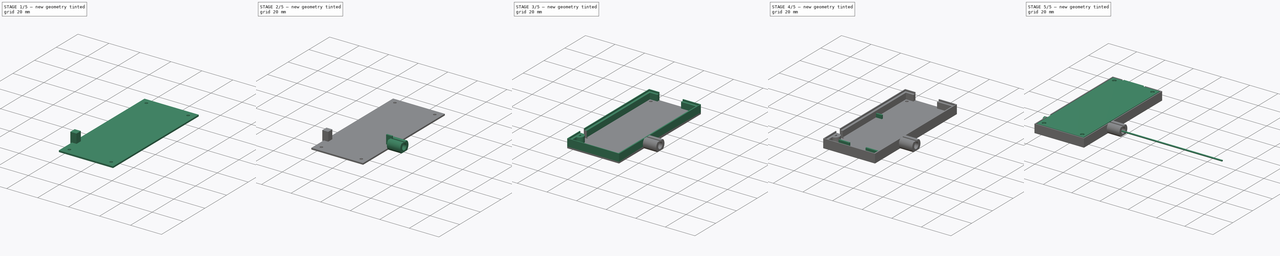
[diagram: build sequence overview — one tinted view per stage of 5, left to right]
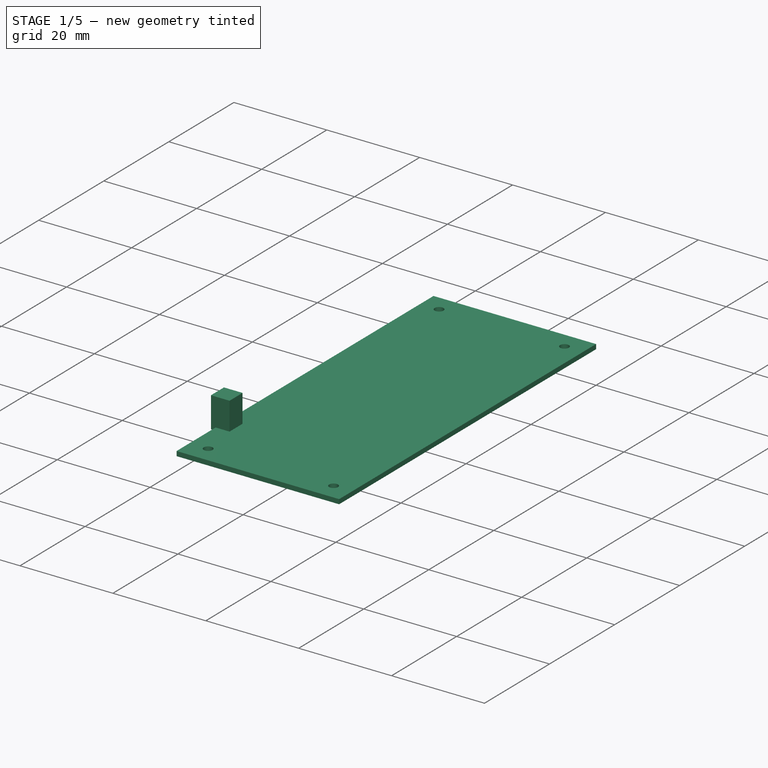
[diagram: stage 1 of 5 — iso view after this stage's code; geometry added in this stage tinted green]
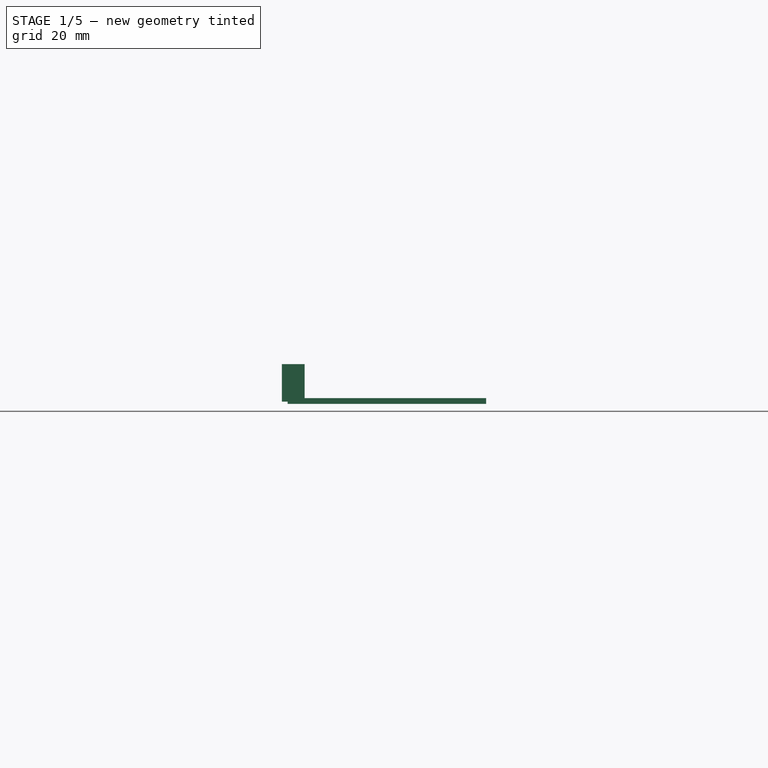
[diagram: stage 1 of 5 — front view after this stage's code; geometry added in this stage tinted green]
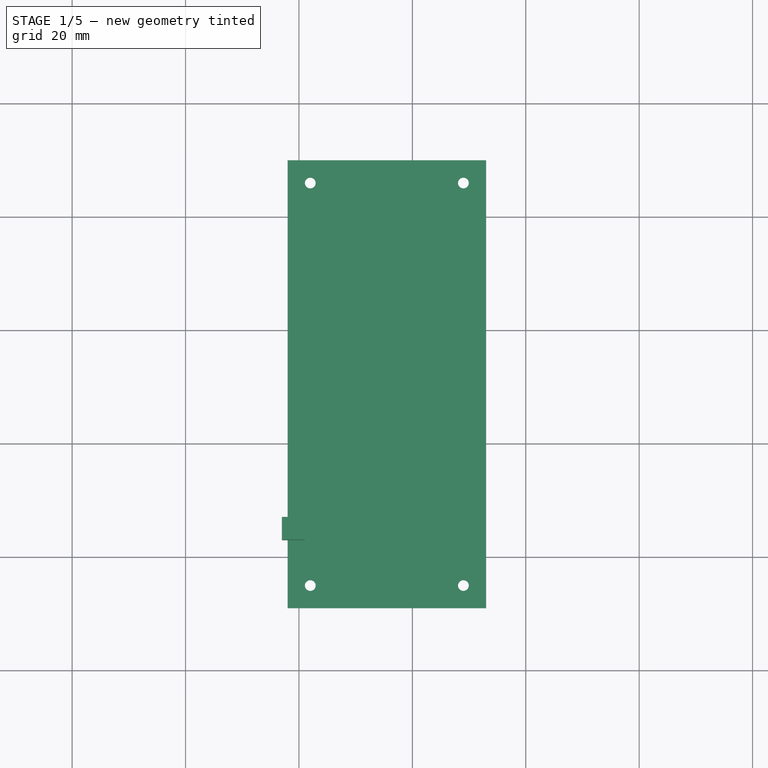
[diagram: stage 1 of 5 — top view after this stage's code; geometry added in this stage tinted green]
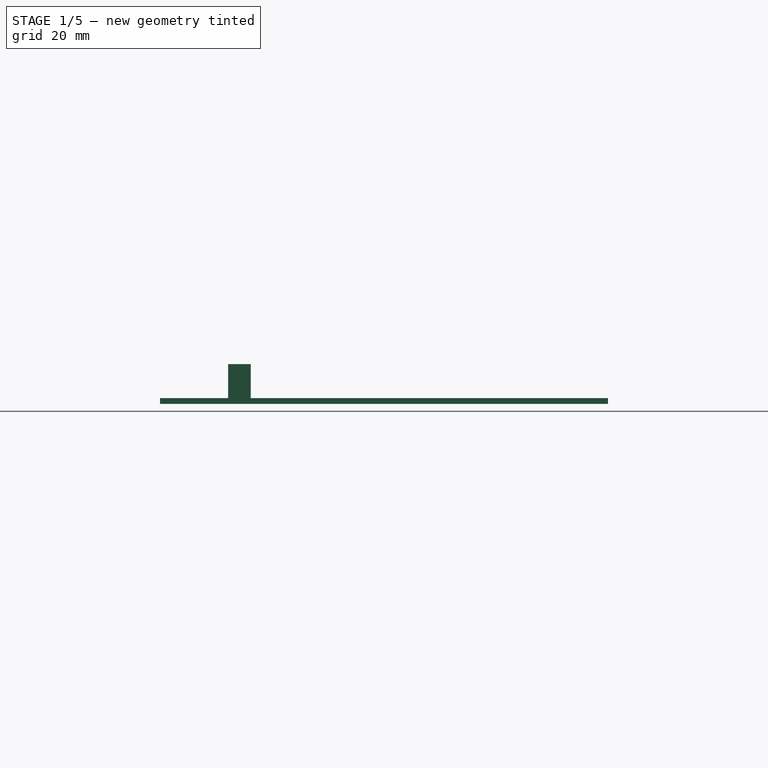
[diagram: stage 1 of 5 — right view after this stage's code; geometry added in this stage tinted green]
FCSTD DOCUMENT  (FreeCAD 0.19R24291 (Git))
Label: servo_board
License: All rights reserved
LicenseURL: http://en.wikipedia.org/wiki/All_rights_reserved
objects: Sketcher::SketchObject×10, Part::Extrusion×8, PartDesign::FeatureBase×6, PartDesign::Body×6, Part::Compound×3, Part::Cut×3, Part::Cylinder×2, Part::Box×1, Spreadsheet::Sheet×1, Part::Sweep×1
note: 40 computed .brp shape members not serialized (recipe doc carries the construction recipe); baked Part::Feature solids carry a one-line shape summary decoded from their .brp

FEATURE [Sketcher::SketchObject] Sketch006
  FullyConstrained = true
  Placement = pos=(0,0,-1) rot=(0,0,1;0rad)
  expr: Constraints[12] = Spreadsheet.m2_r1
  sketch-geometry (8):
    g0: LineSegment StartX=-2 StartY=70 StartZ=0 EndX=33 EndY=70 EndZ=0
    g1: LineSegment StartX=33 StartY=70 StartZ=0 EndX=33 EndY=-9 EndZ=0
    g2: LineSegment StartX=33 StartY=-9 StartZ=0 EndX=-2 EndY=-9 EndZ=0
    g3: LineSegment StartX=-2 StartY=-9 StartZ=0 EndX=-2 EndY=70 EndZ=0
    g4: Circle CenterX=2 CenterY=-5 CenterZ=0 NormalX=0 NormalY=0 NormalZ=1 AngleXU=0 Radius=0.95
    g5: Circle CenterX=29 CenterY=-5 CenterZ=0 NormalX=0 NormalY=0 NormalZ=1 AngleXU=0 Radius=0.95
    g6: Circle CenterX=2 CenterY=66 CenterZ=0 NormalX=0 NormalY=0 NormalZ=1 AngleXU=0 Radius=0.95
    g7: Circle CenterX=29 CenterY=66 CenterZ=0 NormalX=0 NormalY=0 NormalZ=1 AngleXU=0 Radius=0.95
  constraints (24):
    c: Coincident(g0,g1)
    c: Coincident(g1,g2)
    c: Coincident(g2,g3)
    c: Coincident(g3,g0)
    c: Horizontal(g0)
    c: Horizontal(g2)
    c: Vertical(g1)
    c: Vertical(g3)
    c: DistanceX(g0) = -2
    c: DistanceY(g0) = 70
    c: DistanceX(g1) = 33
    c: DistanceY(g1) = -9
    c: Radius(g4) = 0.95
    c: DistanceX(g4) = 2
    c: DistanceY(g4) = -5
    c: Equal(g4,g5) = 1.2
    c: Equal(g4,g6) = 1.2
    c: Equal(g4,g7) = 1.2
    c: Horizontal(g6,g7)
    c: Vertical(g7,g5)
    c: Horizontal(g5,g4)
    c: Vertical(g4,g6)
    c: DistanceY(g6) = 66
    c: DistanceX(g5) = 29
FEATURE [Part::Extrusion] Extrude004
  Base = -> Sketch006
  Dir = (0,0,1)
  DirMode = 2
  FaceMakerClass = Part::FaceMakerBullseye
  LengthFwd = 1
  LengthRev = 0
  Solid = true
  Symmetric = false
FEATURE [Sketcher::SketchObject] Sketch010
  FullyConstrained = true
  Placement = pos=(-3,0,0) rot=(0.57735,-0.57735,-0.57735;2.0944rad)
  sketch-geometry (4):
    g0: LineSegment StartX=-7 StartY=-0.6 StartZ=0 EndX=-3 EndY=-0.6 EndZ=0
    g1: LineSegment StartX=-3 StartY=-0.6 StartZ=0 EndX=-3 EndY=6 EndZ=0
    g2: LineSegment StartX=-3 StartY=6 StartZ=0 EndX=-7 EndY=6 EndZ=0
    g3: LineSegment StartX=-7 StartY=6 StartZ=0 EndX=-7 EndY=-0.6 EndZ=0
  constraints (12):
    c: Coincident(g0,g1)
    c: Coincident(g1,g2)
    c: Coincident(g2,g3)
    c: Coincident(g3,g0)
    c: Horizontal(g0)
    c: Horizontal(g2)
    c: Vertical(g1)
    c: Vertical(g3)
    c: DistanceY(g0) = -0.6
    c: DistanceX(g0) = -3
    c: DistanceY(g1,g1) = 6.6
    c: DistanceX(g0,g0) = 4
FEATURE [Part::Extrusion] Extrude008  label="led003"
  Base = -> Sketch010
  Dir = (-1,2e-16,-2e-16)
  DirMode = 2
  FaceMakerClass = Part::FaceMakerBullseye
  LengthFwd = 0
  LengthRev = 4
  Solid = true
  Symmetric = false
FEATURE [PartDesign::FeatureBase] Clone006
  BaseFeature = -> Extrude008
FEATURE [PartDesign::FeatureBase] Clone007
  BaseFeature = -> Extrude008
FEATURE [PartDesign::Body] Body007  label="led005"
  BaseFeature = -> Extrude008
  Group = -> [Clone007]
  Origin = -> Origin007
  Tip = -> Clone007
FEATURE [Part::Cut] Cut004
  Base = -> Extrude004
  Tool = -> Body007
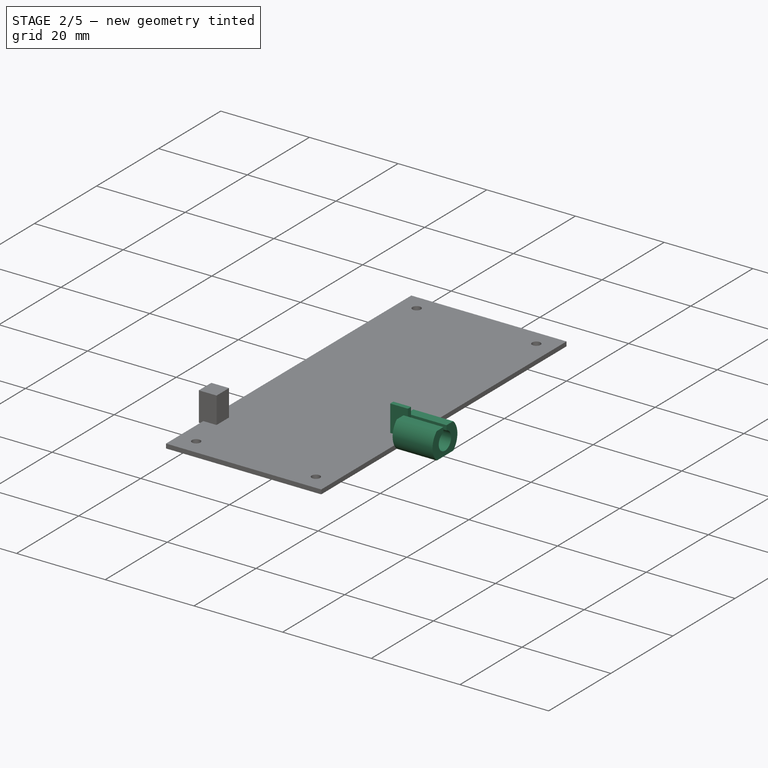
[diagram: stage 2 of 5 — iso view after this stage's code; geometry added in this stage tinted green]
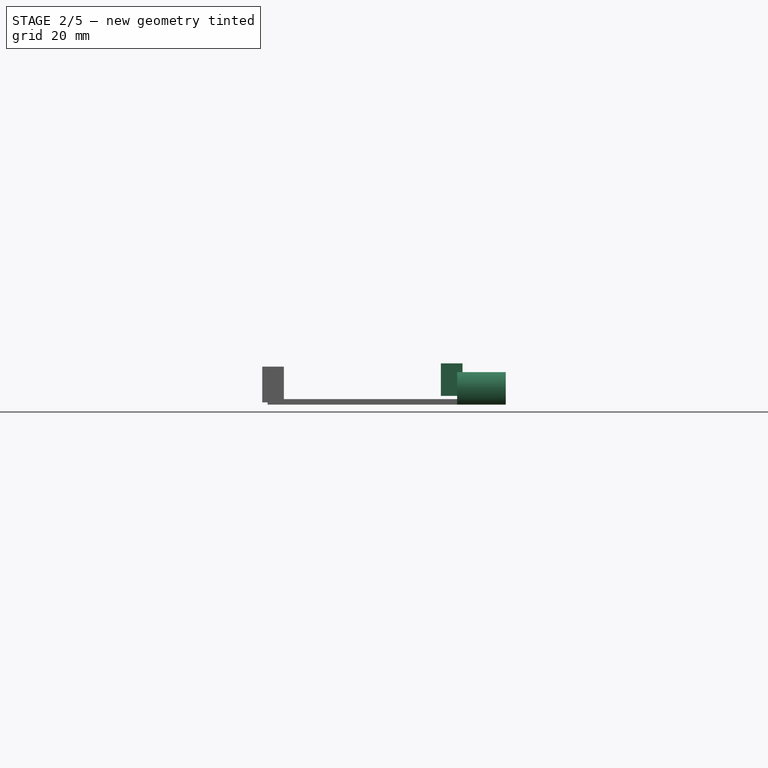
[diagram: stage 2 of 5 — front view after this stage's code; geometry added in this stage tinted green]
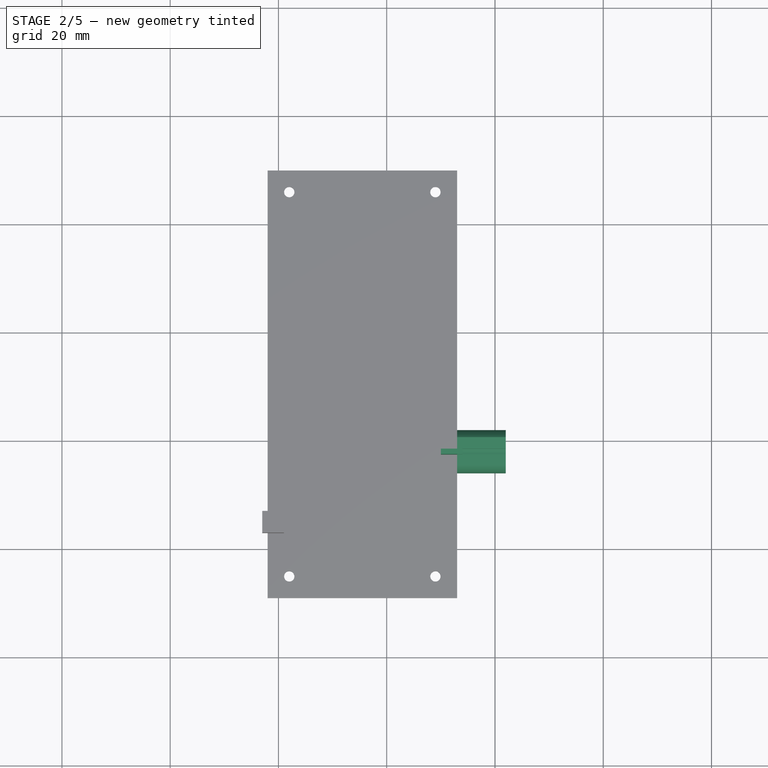
[diagram: stage 2 of 5 — top view after this stage's code; geometry added in this stage tinted green]
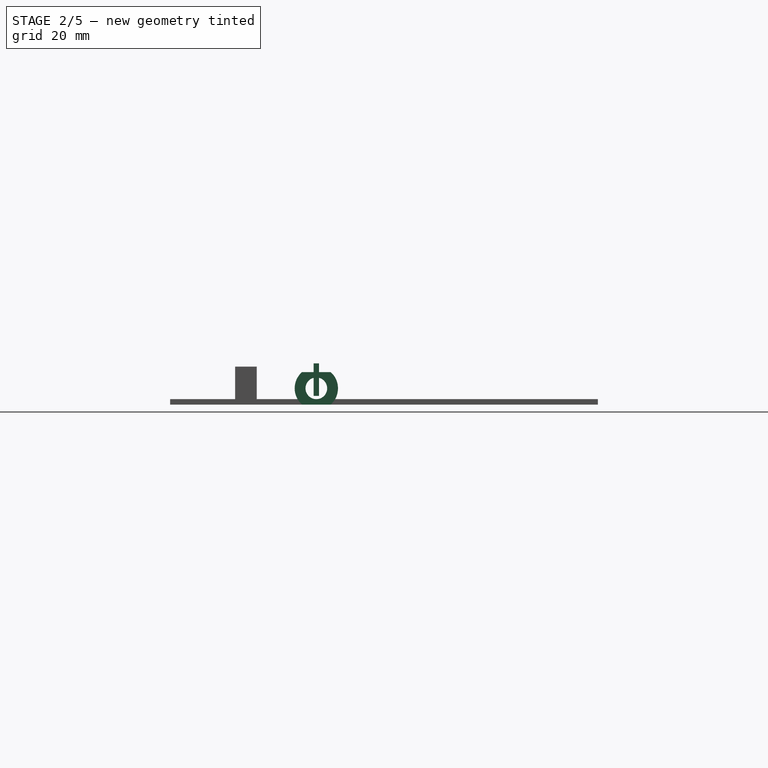
[diagram: stage 2 of 5 — right view after this stage's code; geometry added in this stage tinted green]
FEATURE [Sketcher::SketchObject] Sketch001
  FullyConstrained = true
  Placement = pos=(33,0,0) rot=(0.57735,0.57735,0.57735;2.0944rad)
  expr: Constraints[8] = Spreadsheet.antenna_r + 2
  expr: Constraints[7] = Spreadsheet.antenna_r
  sketch-geometry (4):
    g0: ArcOfCircle CenterX=18 CenterY=2 CenterZ=0 NormalX=0 NormalY=0 NormalZ=1 AngleXU=0 Radius=2 StartAngle=1.82348 EndAngle=7.6013
    g1: ArcOfCircle CenterX=18 CenterY=2 CenterZ=0 NormalX=0 NormalY=0 NormalZ=1 AngleXU=0 Radius=4 StartAngle=1.69612 EndAngle=7.72865
    g2: LineSegment StartX=17.5 StartY=5.96863 StartZ=0 EndX=17.5 EndY=3.93649 EndZ=0
    g3: LineSegment StartX=18.5 StartY=5.96863 StartZ=0 EndX=18.5 EndY=3.93649 EndZ=0
  constraints (13):
    c: Coincident(g1,g0)
    c: Coincident(g2,g1)
    c: Coincident(g2,g0)
    c: Coincident(g3,g1)
    c: Coincident(g3,g0)
    c: Vertical(g3)
    c: Vertical(g2)
    c: Radius(g0) = 2
    c: Radius(g1) = 4
    c: DistanceY(g0) = 2
    c: DistanceX(g0) = 18
    c: DistanceX(g0,g0) = 0.5
    c: DistanceX(g0,g0) = 1
FEATURE [Spreadsheet::Sheet] Spreadsheet
  cells = A1=antenna_r; B1(antenna_r)=2; A3=m2_r1; B3(m2_r1)=0.95; A4=m2_r2; B4(m2_r2)=1.3; A5=m2_r3; B5(m2_r3)=2.3; A6=m26_r1; B6(m26_r1)=2.6; A7=m26_r2; B7(m26_r2)=1.6; A8=m26_r3; B8(m26_r3)=1.25
FEATURE [Part::Extrusion] Extrude001
  Base = -> Sketch001
  Dir = (1,0,0)
  DirMode = 2
  FaceMakerClass = Part::FaceMakerBullseye
  LengthFwd = 9
  LengthRev = 0
  Solid = true
  Symmetric = false
FEATURE [Sketcher::SketchObject] Sketch008
  FullyConstrained = false
  Placement = pos=(42,0,0) rot=(0.57735,0.57735,0.57735;2.0944rad)
  sketch-geometry (12):
    g0: LineSegment StartX=17.5 StartY=5 StartZ=0 EndX=14 EndY=5 EndZ=0
    g1: LineSegment StartX=14 StartY=5 StartZ=0 EndX=14 EndY=7 EndZ=0
    g2: LineSegment StartX=14 StartY=7 StartZ=0 EndX=17.5 EndY=7 EndZ=0
    g3: LineSegment StartX=17.5 StartY=7 StartZ=0 EndX=17.5 EndY=5 EndZ=0
    g4: LineSegment StartX=18.5 StartY=5 StartZ=0 EndX=22 EndY=5 EndZ=0
    g5: LineSegment StartX=22 StartY=5 StartZ=0 EndX=22 EndY=7 EndZ=0
    g6: LineSegment StartX=22 StartY=7 StartZ=0 EndX=18.5 EndY=7 EndZ=0
    g7: LineSegment StartX=18.5 StartY=7 StartZ=0 EndX=18.5 EndY=5 EndZ=0
    g8: LineSegment StartX=14 StartY=-1 StartZ=0 EndX=22 EndY=-1 EndZ=0
    g9: LineSegment StartX=22 StartY=-1 StartZ=0 EndX=22 EndY=-3 EndZ=0
    g10: LineSegment StartX=22 StartY=-3 StartZ=0 EndX=14 EndY=-3 EndZ=0
    g11: LineSegment StartX=14 StartY=-3 StartZ=0 EndX=14 EndY=-1 EndZ=0
  constraints (30):
    c: Coincident(g0,g1)
    c: Coincident(g1,g2)
    c: Coincident(g2,g3)
    c: Coincident(g3,g0)
    c: Horizontal(g0)
    c: Horizontal(g2)
    c: Vertical(g1)
    c: Vertical(g3)
    c: Coincident(g4,g5)
    c: Coincident(g5,g6)
    c: Coincident(g6,g7)
    c: Coincident(g7,g4)
    c: Horizontal(g4)
    c: Horizontal(g6)
    c: Vertical(g5)
    c: Vertical(g7)
    c: Coincident(g8,g9)
    c: Coincident(g9,g10)
    c: Coincident(g10,g11)
    c: Coincident(g11,g8)
    c: Horizontal(g8)
    c: Horizontal(g10)
    c: Vertical(g9)
    c: Vertical(g11)
    c: DistanceX(g4) = 18.5
    c: DistanceX(g0) = 17.5
    c: DistanceX(g4,g4) = 3.5
    c: DistanceX(g0,g0) = 3.5
    c: DistanceX(g8) = 14
    c: DistanceX(g8,g8) = 8
FEATURE [Part::Extrusion] Extrude006
  Base = -> Sketch008
  Dir = (1,-2e-16,2e-16)
  DirMode = 2
  FaceMakerClass = Part::FaceMakerBullseye
  LengthFwd = 0
  LengthRev = 12
  Solid = true
  Symmetric = false
FEATURE [Part::Compound] Compound002
  Links = -> [Extrude006]
FEATURE [Part::Cut] Cut003
  Base = -> Extrude001
  Tool = -> Compound002
FEATURE [Sketcher::SketchObject] Sketch009
  FullyConstrained = true
  Placement = pos=(33,0,0) rot=(0.57735,0.57735,0.57735;2.0944rad)
  sketch-geometry (4):
    g0: LineSegment StartX=17.5 StartY=6.6 StartZ=0 EndX=18.5 EndY=6.6 EndZ=0
    g1: LineSegment StartX=18.5 StartY=6.6 StartZ=0 EndX=18.5 EndY=0.6 EndZ=0
    g2: LineSegment StartX=18.5 StartY=0.6 StartZ=0 EndX=17.5 EndY=0.6 EndZ=0
    g3: LineSegment StartX=17.5 StartY=0.6 StartZ=0 EndX=17.5 EndY=6.6 EndZ=0
  constraints (12):
    c: Coincident(g0,g1)
    c: Coincident(g1,g2)
    c: Coincident(g2,g3)
    c: Coincident(g3,g0)
    c: Horizontal(g0)
    c: Horizontal(g2)
    c: Vertical(g1)
    c: Vertical(g3)
    c: DistanceX(g2) = 17.5
    c: DistanceY(g3,g3) = 6
    c: DistanceX(g2,g2) = 1
    c: DistanceY(g2) = 0.6
FEATURE [Part::Extrusion] Extrude007
  Base = -> Sketch009
  Dir = (1,0,0)
  DirMode = 2
  FaceMakerClass = Part::FaceMakerBullseye
  LengthFwd = 1
  LengthRev = 3
  Solid = true
  Symmetric = false
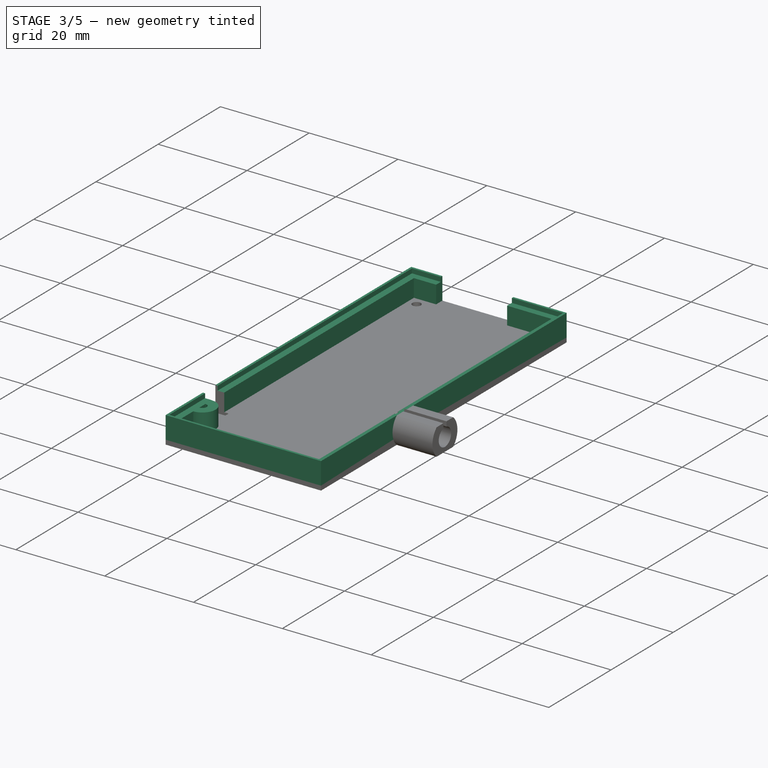
[diagram: stage 3 of 5 — iso view after this stage's code; geometry added in this stage tinted green]
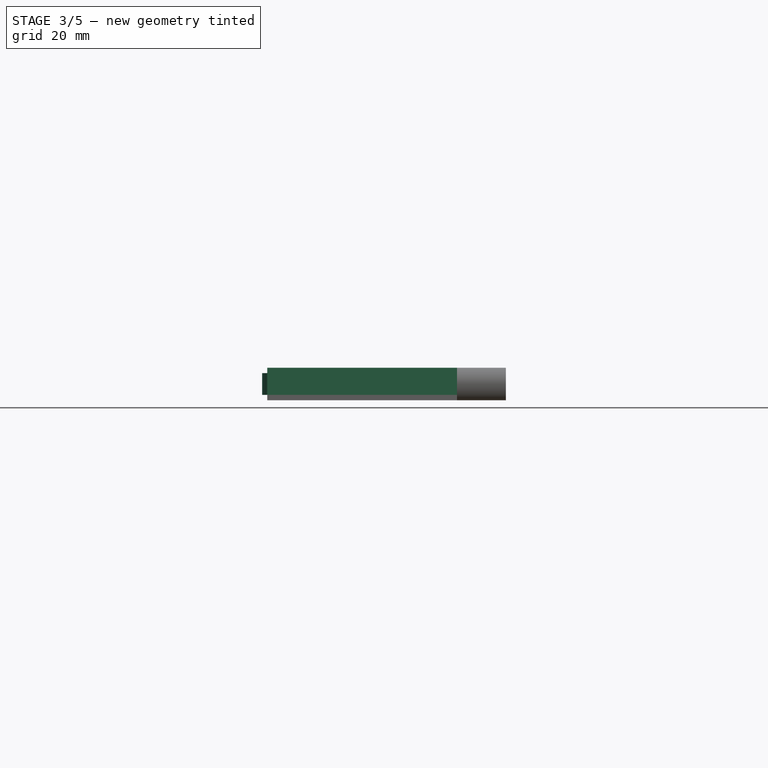
[diagram: stage 3 of 5 — front view after this stage's code; geometry added in this stage tinted green]
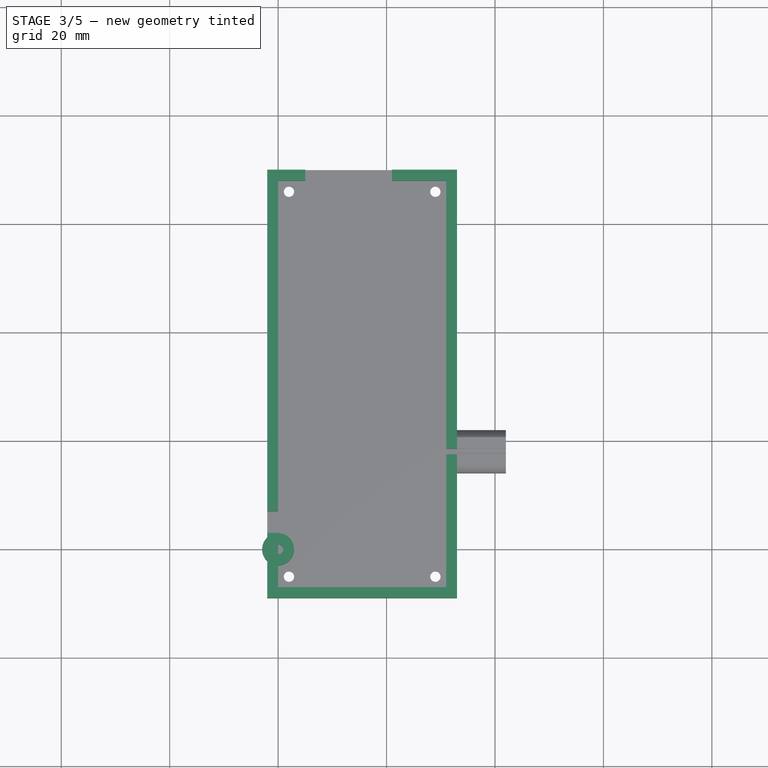
[diagram: stage 3 of 5 — top view after this stage's code; geometry added in this stage tinted green]
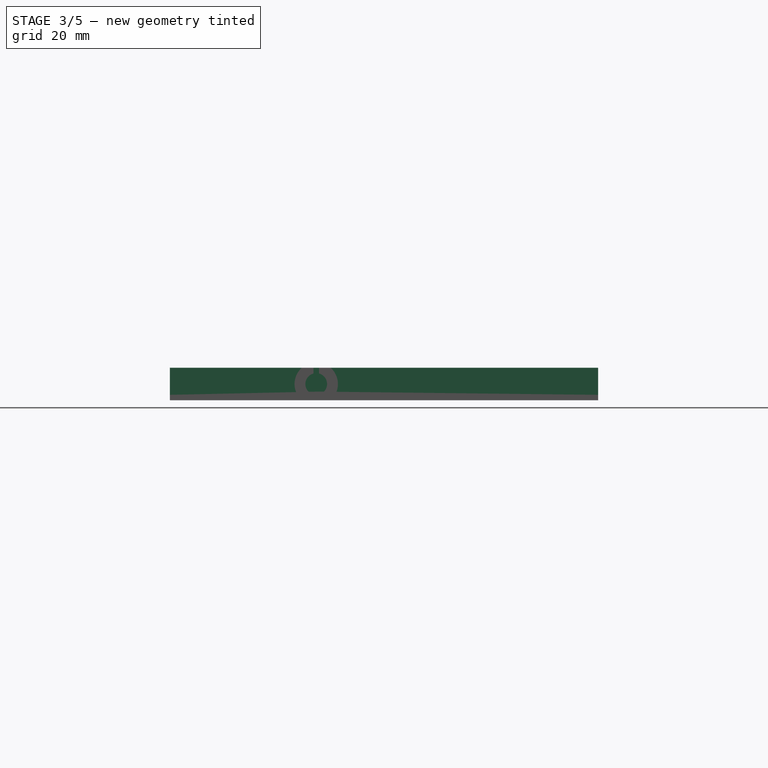
[diagram: stage 3 of 5 — right view after this stage's code; geometry added in this stage tinted green]
FEATURE [Sketcher::SketchObject] Sketch002  label="profile"
  FullyConstrained = true
  Placement = pos=(16,0,0) rot=(0.57735,0.57735,0.57735;2.0944rad)
  sketch-geometry (6):
    g0: LineSegment StartX=-7 StartY=0 StartZ=0 EndX=-7 EndY=4 EndZ=0
    g1: LineSegment StartX=-7 StartY=4 StartZ=0 EndX=-8.5 EndY=4 EndZ=0
    g2: LineSegment StartX=-8.5 StartY=4 StartZ=0 EndX=-8.5 EndY=5 EndZ=0
    g3: LineSegment StartX=-8.5 StartY=5 StartZ=0 EndX=-9 EndY=5 EndZ=0
    g4: LineSegment StartX=-9 StartY=5 StartZ=0 EndX=-9 EndY=0 EndZ=0
    g5: LineSegment StartX=-9 StartY=0 StartZ=0 EndX=-7 EndY=0 EndZ=0
  constraints (18):
    c: PointOnObject(g0,g-1)
    c: Vertical(g0)
    c: Coincident(g0,g1)
    c: Horizontal(g1)
    c: Coincident(g1,g2)
    c: Vertical(g2)
    c: Coincident(g2,g3)
    c: Horizontal(g3)
    c: Coincident(g3,g4)
    c: PointOnObject(g4,g-1)
    c: Vertical(g4)
    c: Coincident(g4,g5)
    c: Coincident(g5,g0)
    c: DistanceX(g5,g5) = 2
    c: DistanceY(g0,g0) = 4
    c: DistanceY(g4,g4) = 5
    c: DistanceX(g3,g3) = 0.5
    c: DistanceX(g0) = -7
FEATURE [Sketcher::SketchObject] Sketch003  label="path"
  FullyConstrained = true
  sketch-geometry (5):
    g0: LineSegment StartX=0 StartY=-7 StartZ=0 EndX=31 EndY=-7 EndZ=0
    g1: LineSegment StartX=31 StartY=-7 StartZ=0 EndX=31 EndY=68 EndZ=0
    g2: LineSegment StartX=0 StartY=-7 StartZ=0 EndX=0 EndY=68 EndZ=0
    g3: LineSegment StartX=0 StartY=68 StartZ=0 EndX=5 EndY=68 EndZ=0
    g4: LineSegment StartX=31 StartY=68 StartZ=0 EndX=21 EndY=68 EndZ=0
  constraints (16):
    c: Horizontal(g0)
    c: Coincident(g0,g1)
    c: Vertical(g1)
    c: Coincident(g0,g2)
    c: Vertical(g2)
    c: Horizontal(g2,g1)
    c: Coincident(g3,g2)
    c: Horizontal(g3)
    c: Coincident(g4,g1)
    c: Horizontal(g4)
    c: DistanceX(g4,g4) = 10
    c: DistanceX(g3,g3) = 5
    c: PointOnObject(g2,g-2)
    c: DistanceY(g2) = 68
    c: DistanceX(g1) = 31
    c: DistanceY(g0) = -7
FEATURE [Part::Sweep] Sweep
  Frenet = false
  Sections = -> [Sketch002]
  Solid = true
  Spine = -> Sketch003
  Transition = 1
FEATURE [Sketcher::SketchObject] Sketch004
  FullyConstrained = true
  expr: Constraints[3] = Spreadsheet.m2_r1 + 2
  expr: Constraints[2] = Spreadsheet.m2_r1
  sketch-geometry (2):
    g0: Circle CenterX=0 CenterY=0 CenterZ=0 NormalX=0 NormalY=0 NormalZ=1 AngleXU=0 Radius=0.95
    g1: Circle CenterX=0 CenterY=0 CenterZ=0 NormalX=0 NormalY=0 NormalZ=1 AngleXU=0 Radius=2.95
  constraints (4):
    c: Coincident(g0,g-1)
    c: Coincident(g1,g0)
    c: Radius(g0) = 0.95
    c: Radius(g1) = 2.95
FEATURE [Part::Extrusion] Extrude002
  Base = -> Sketch004
  Dir = (0,0,1)
  DirMode = 2
  FaceMakerClass = Part::FaceMakerBullseye
  LengthFwd = 4
  LengthRev = 0
  Solid = true
  Symmetric = false
FEATURE [PartDesign::Body] Body006  label="led004"
  BaseFeature = -> Extrude008
  Group = -> [Clone006]
  Origin = -> Origin006
  Tip = -> Clone006
FEATURE [Part::Compound] Compound
  Links = -> [Extrude007,Body006]
FEATURE [Part::Cut] Cut
  Base = -> Sweep
  Tool = -> Compound
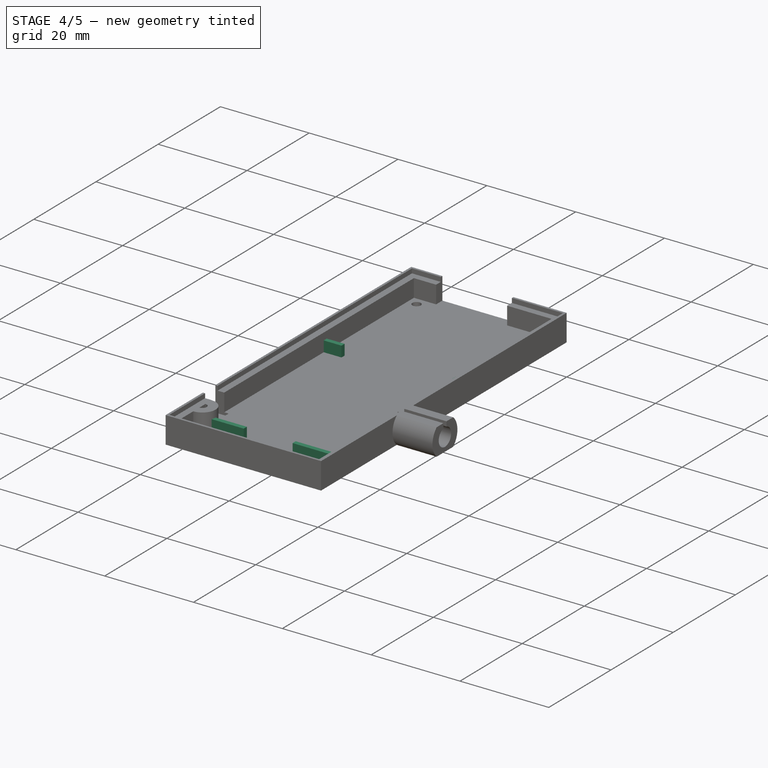
[diagram: stage 4 of 5 — iso view after this stage's code; geometry added in this stage tinted green]
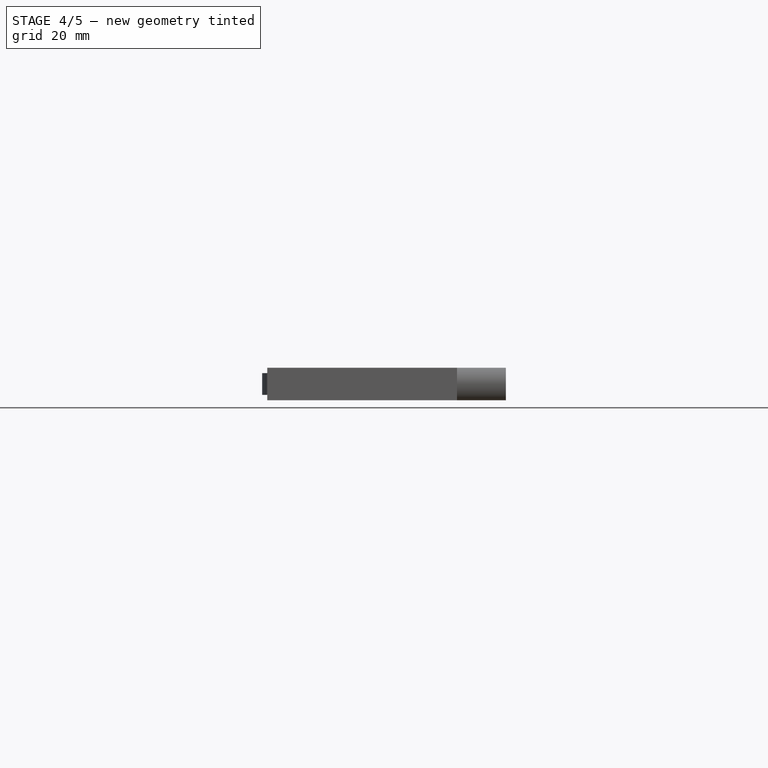
[diagram: stage 4 of 5 — front view after this stage's code; geometry added in this stage tinted green]
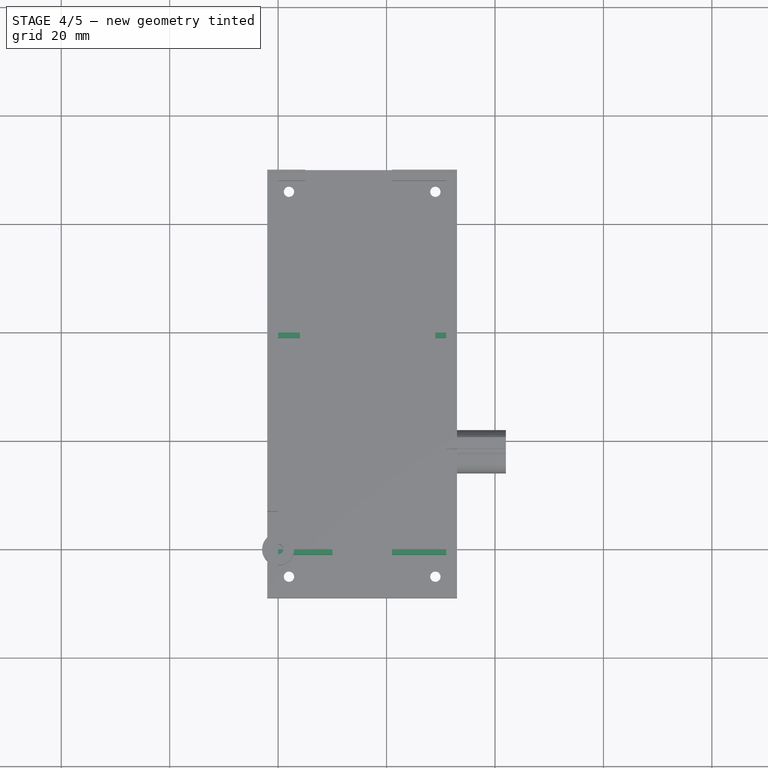
[diagram: stage 4 of 5 — top view after this stage's code; geometry added in this stage tinted green]
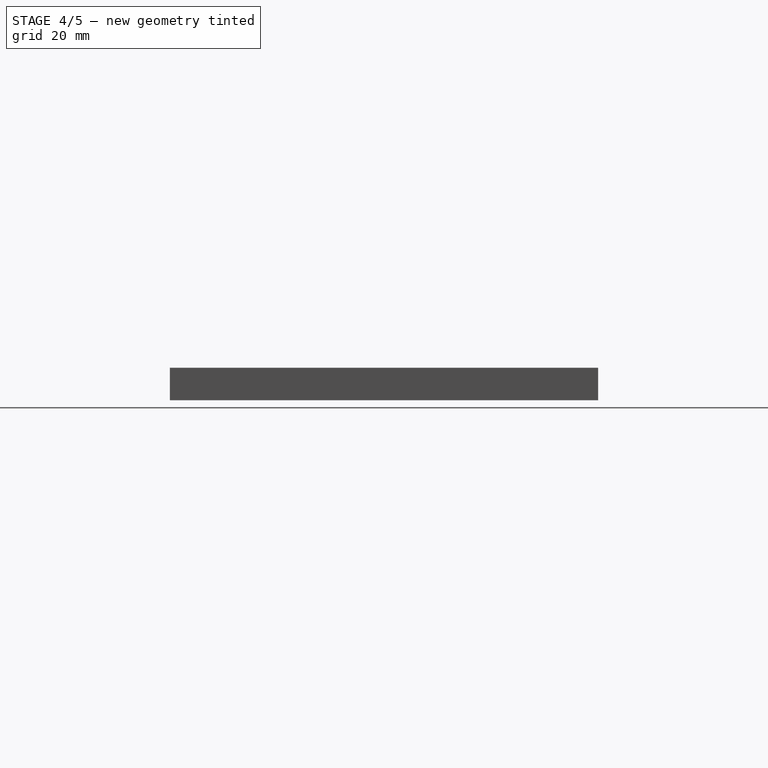
[diagram: stage 4 of 5 — right view after this stage's code; geometry added in this stage tinted green]
FEATURE [Sketcher::SketchObject] Sketch
  FullyConstrained = true
  sketch-geometry (16):
    g0: LineSegment StartX=4 StartY=39 StartZ=0 EndX=4 EndY=40 EndZ=0
    g1: LineSegment StartX=4 StartY=40 StartZ=0 EndX=0 EndY=40 EndZ=0
    g2: LineSegment StartX=0 StartY=40 StartZ=0 EndX=0 EndY=39 EndZ=0
    g3: LineSegment StartX=0 StartY=39 StartZ=0 EndX=4 EndY=39 EndZ=0
    g4: LineSegment StartX=29 StartY=39 StartZ=0 EndX=31 EndY=39 EndZ=0
    g5: LineSegment StartX=31 StartY=39 StartZ=0 EndX=31 EndY=40 EndZ=0
    g6: LineSegment StartX=31 StartY=40 StartZ=0 EndX=29 EndY=40 EndZ=0
    g7: LineSegment StartX=29 StartY=40 StartZ=0 EndX=29 EndY=39 EndZ=0
    g8: LineSegment StartX=0 StartY=0 StartZ=0 EndX=10 EndY=0 EndZ=0
    g9: LineSegment StartX=10 StartY=0 StartZ=0 EndX=10 EndY=-1 EndZ=0
    g10: LineSegment StartX=10 StartY=-1 StartZ=0 EndX=0 EndY=-1 EndZ=0
    g11: LineSegment StartX=21 StartY=0 StartZ=0 EndX=31 EndY=0 EndZ=0
    g12: LineSegment StartX=31 StartY=0 StartZ=0 EndX=31 EndY=-1 EndZ=0
    g13: LineSegment StartX=31 StartY=-1 StartZ=0 EndX=21 EndY=-1 EndZ=0
    g14: LineSegment StartX=21 StartY=-1 StartZ=0 EndX=21 EndY=0 EndZ=0
    g15: LineSegment StartX=0 StartY=0 StartZ=0 EndX=0 EndY=-1 EndZ=0
  constraints (48):
    c: Vertical(g0)
    c: Coincident(g0,g1)
    c: Horizontal(g1)
    c: Coincident(g1,g2)
    c: Vertical(g2)
    c: PointOnObject(g3,g-2)
    c: Coincident(g3,g0)
    c: Horizontal(g3)
    c: Horizontal(g4)
    c: Vertical(g5)
    c: Coincident(g5,g6)
    c: Horizontal(g6)
    c: Coincident(g6,g7)
    c: Coincident(g7,g4)
    c: Vertical(g7)
    c: PointOnObject(g8,g-1)
    c: Coincident(g8,g9)
    c: Vertical(g9)
    c: Coincident(g9,g10)
    c: Horizontal(g10)
    c: PointOnObject(g11,g-1)
    c: PointOnObject(g11,g-1)
    c: Vertical(g12)
    c: Coincident(g12,g13)
    c: Horizontal(g13)
    c: Coincident(g13,g14)
    c: Coincident(g14,g11)
    c: Vertical(g14)
    c: DistanceX(g3,g3) = 4
    c: DistanceX(g4,g4) = 2
    c: DistanceX(g4) = 31
    c: DistanceY(g7,g7) = 1
    c: Horizontal(g6,g0)
    c: Horizontal(g0,g4)
    c: DistanceY(g9,g9) = 1
    c: Horizontal(g13,g9)
    c: DistanceX(g8,g8) = 10
    c: DistanceX(g11,g11) = 10
    c: DistanceY(g3) = 39
    c: Coincident(g15,g8)
    c: Coincident(g15,g10)
    c: Vertical(g15)
    c: PointOnObject(g10,g-2)
    c: Horizontal(g8)
    c: Coincident(g11,g12)
    c: Coincident(g4,g5)
    c: Vertical(g11,g4)
    c: Coincident(g2,g3)
FEATURE [Part::Extrusion] Extrude
  Base = -> Sketch
  Dir = (0,0,1)
  DirMode = 2
  FaceMakerClass = Part::FaceMakerBullseye
  LengthFwd = 2.4
  LengthRev = 0
  Solid = true
  Symmetric = false
FEATURE [PartDesign::FeatureBase] Clone
  BaseFeature = -> Extrude002
FEATURE [PartDesign::Body] Body
  BaseFeature = -> Extrude002
  Group = -> [Clone]
  Origin = -> Origin
  Placement = pos=(2,66,0) rot=(0,0,1;0rad)
  Tip = -> Clone
FEATURE [PartDesign::FeatureBase] Clone001
  BaseFeature = -> Extrude002
FEATURE [PartDesign::Body] Body001
  BaseFeature = -> Extrude002
  Group = -> [Clone001]
  Origin = -> Origin001
  Placement = pos=(29,66,0) rot=(0,0,1;0rad)
  Tip = -> Clone001
FEATURE [PartDesign::FeatureBase] Clone002
  BaseFeature = -> Extrude002
FEATURE [PartDesign::Body] Body002
  BaseFeature = -> Extrude002
  Group = -> [Clone002]
  Origin = -> Origin002
  Placement = pos=(2,-5,0) rot=(0,0,1;0rad)
  Tip = -> Clone002
FEATURE [PartDesign::FeatureBase] Clone003
  BaseFeature = -> Extrude002
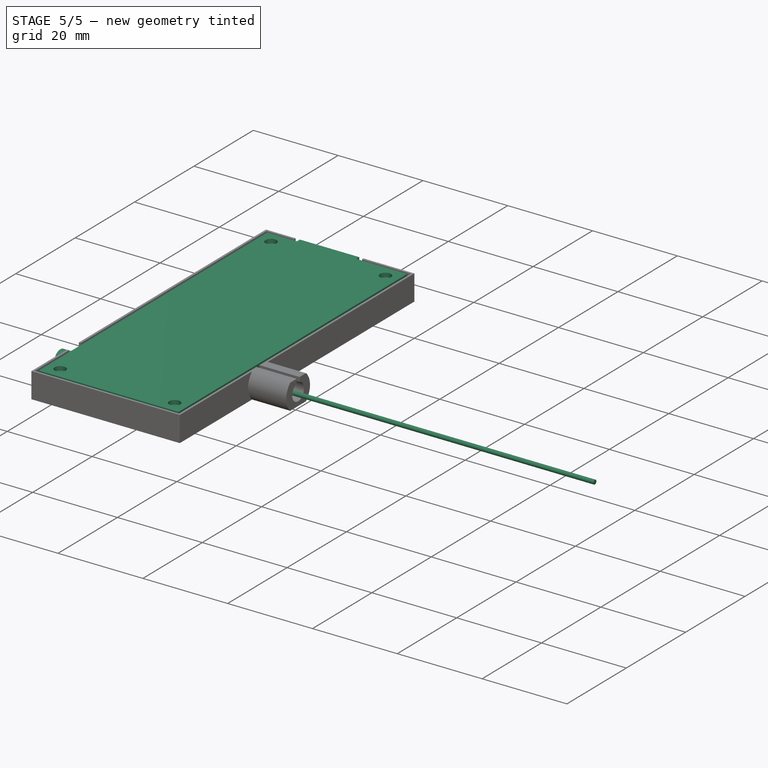
[diagram: stage 5 of 5 — iso view after this stage's code; geometry added in this stage tinted green]
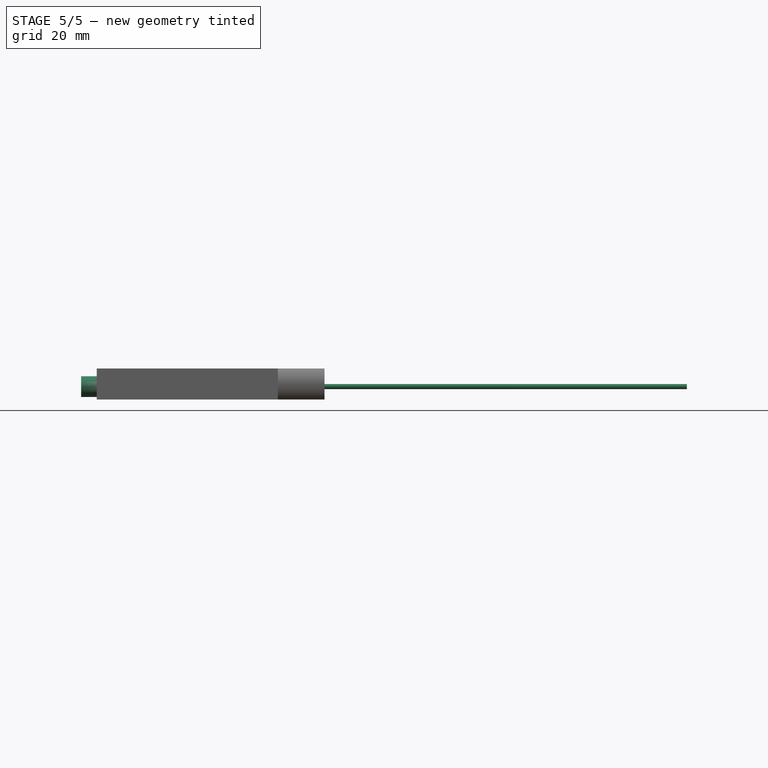
[diagram: stage 5 of 5 — front view after this stage's code; geometry added in this stage tinted green]
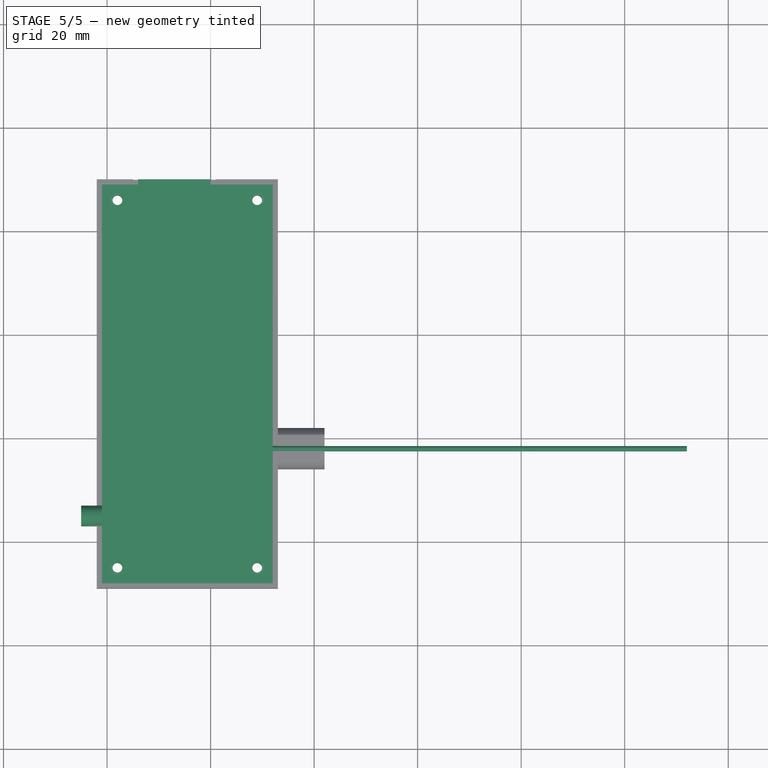
[diagram: stage 5 of 5 — top view after this stage's code; geometry added in this stage tinted green]
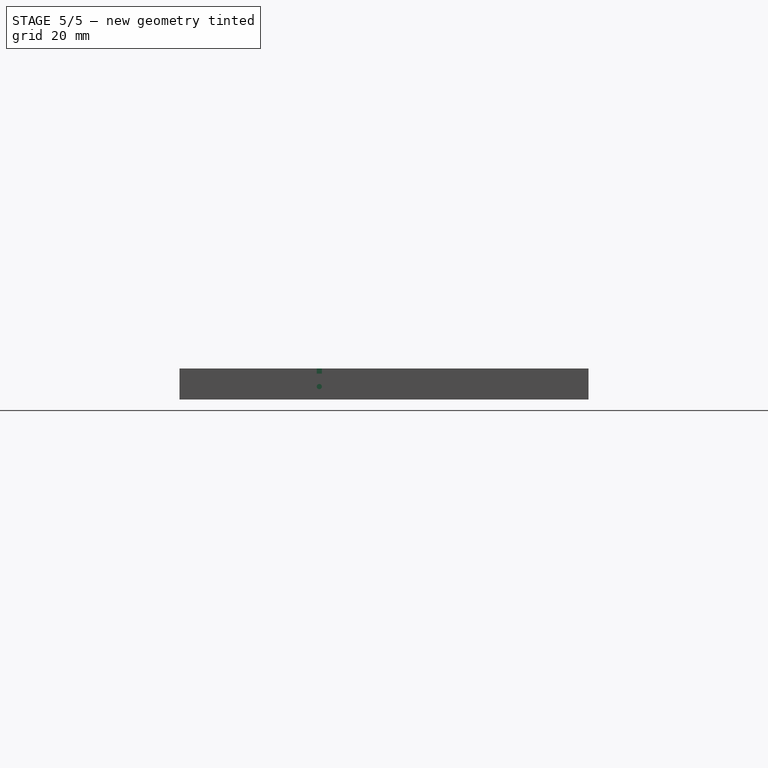
[diagram: stage 5 of 5 — right view after this stage's code; geometry added in this stage tinted green]
FEATURE [Part::Box] Box  label="board"
  AttacherType = Attacher::AttachEngine3D
  Height = 1
  Length = 31
  Width = 39
FEATURE [Part::Cylinder] Cylinder  label="antenna"
  Angle = 360
  AttacherType = Attacher::AttachEngine3D
  Height = 81
  Placement = pos=(31,18,1.5) rot=(0,1,0;1.5708rad)
  Radius = 0.5
FEATURE [Part::Cylinder] Cylinder001  label="led"
  Angle = 360
  AttacherType = Attacher::AttachEngine3D
  Height = 5
  Placement = pos=(0,5,1.5) rot=(0,-1,0;1.5708rad)
  Radius = 2
FEATURE [PartDesign::Body] Body003
  BaseFeature = -> Extrude002
  Group = -> [Clone003]
  Origin = -> Origin003
  Placement = pos=(29,-5,0) rot=(0,0,1;0rad)
  Tip = -> Clone003
FEATURE [Sketcher::SketchObject] Sketch005
  FullyConstrained = true
  Placement = pos=(0,0,4) rot=(0,0,1;0rad)
  expr: Constraints[9] = Spreadsheet.m2_r2
  sketch-geometry (12):
    g0: LineSegment StartX=32 StartY=69 StartZ=0 EndX=32 EndY=-8 EndZ=0
    g1: LineSegment StartX=32 StartY=-8 StartZ=0 EndX=-1 EndY=-8 EndZ=0
    g2: LineSegment StartX=-1 StartY=-8 StartZ=0 EndX=-1 EndY=69 EndZ=0
    g3: Circle CenterX=2 CenterY=-5 CenterZ=0 NormalX=0 NormalY=0 NormalZ=1 AngleXU=0 Radius=1.3
    g4: Circle CenterX=29 CenterY=-5 CenterZ=0 NormalX=0 NormalY=0 NormalZ=1 AngleXU=0 Radius=1.3
    g5: Circle CenterX=2 CenterY=66 CenterZ=0 NormalX=0 NormalY=0 NormalZ=1 AngleXU=0 Radius=1.3
    g6: Circle CenterX=29 CenterY=66 CenterZ=0 NormalX=0 NormalY=0 NormalZ=1 AngleXU=0 Radius=1.3
    g7: LineSegment StartX=-1 StartY=69 StartZ=0 EndX=6 EndY=69 EndZ=0
    g8: LineSegment StartX=6 StartY=69 StartZ=0 EndX=6 EndY=70 EndZ=0
    g9: LineSegment StartX=6 StartY=70 StartZ=0 EndX=20 EndY=70 EndZ=0
    g10: LineSegment StartX=20 StartY=70 StartZ=0 EndX=20 EndY=69 EndZ=0
    g11: LineSegment StartX=20 StartY=69 StartZ=0 EndX=32 EndY=69 EndZ=0
  constraints (36):
    c: Coincident(g0,g1)
    c: Coincident(g1,g2)
    c: Horizontal(g1)
    c: Vertical(g0)
    c: Vertical(g2)
    c: DistanceX(g2) = -1
    c: DistanceY(g2) = 69
    c: DistanceX(g0) = 32
    c: DistanceY(g0) = -8
    c: Radius(g3) = 1.3
    c: DistanceX(g3) = 2
    c: DistanceY(g3) = -5
    c: Equal(g3,g4) = 1.2
    c: Equal(g3,g5) = 1.2
    c: Equal(g3,g6) = 1.2
    c: Horizontal(g5,g6)
    c: Vertical(g6,g4)
    c: Horizontal(g4,g3)
    c: Vertical(g3,g5)
    c: DistanceY(g5) = 66
    c: DistanceX(g4) = 29
    c: Coincident(g2,g7)
    c: Horizontal(g7)
    c: Coincident(g7,g8)
    c: Vertical(g8)
    c: Coincident(g8,g9)
    c: Horizontal(g9)
    c: Coincident(g9,g10)
    c: Vertical(g10)
    c: Coincident(g10,g11)
    c: Coincident(g11,g0)
    c: Horizontal(g11)
    c: Horizontal(g7,g10)
    c: DistanceY(g8) = 70
    c: DistanceX(g7) = 6
    c: DistanceX(g10) = 20
FEATURE [Part::Extrusion] Extrude003  label="top"
  Base = -> Sketch005
  Dir = (0,0,1)
  DirMode = 2
  FaceMakerClass = Part::FaceMakerBullseye
  LengthFwd = 1
  LengthRev = 0
  Solid = true
  Symmetric = false
FEATURE [Part::Compound] Compound001  label="bottom"
  Links = -> [Extrude,Body,Body001,Body002,Body003,Cut,Cut003,Cut004]
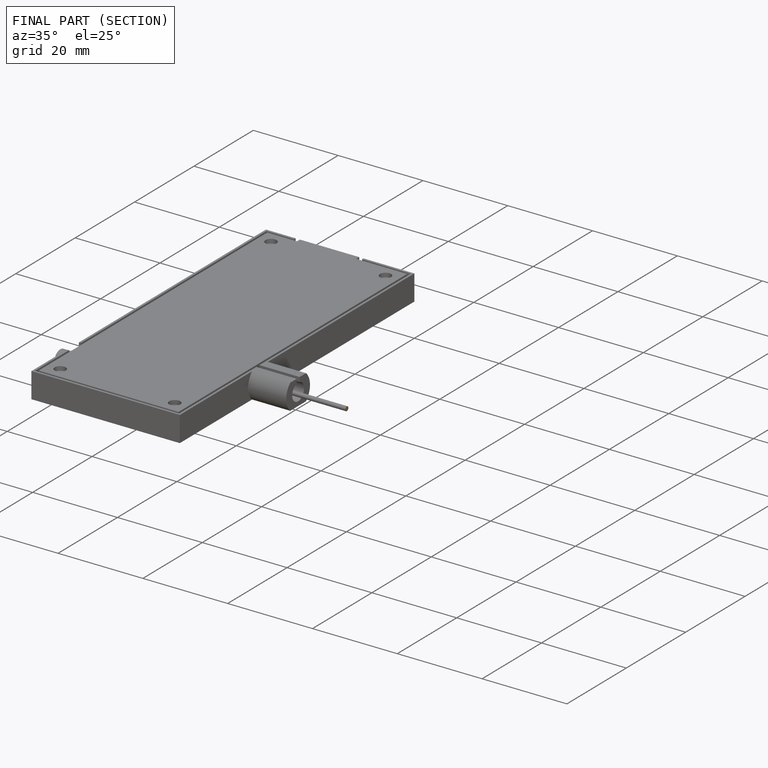
[diagram: finished part — half-section view (interior)]
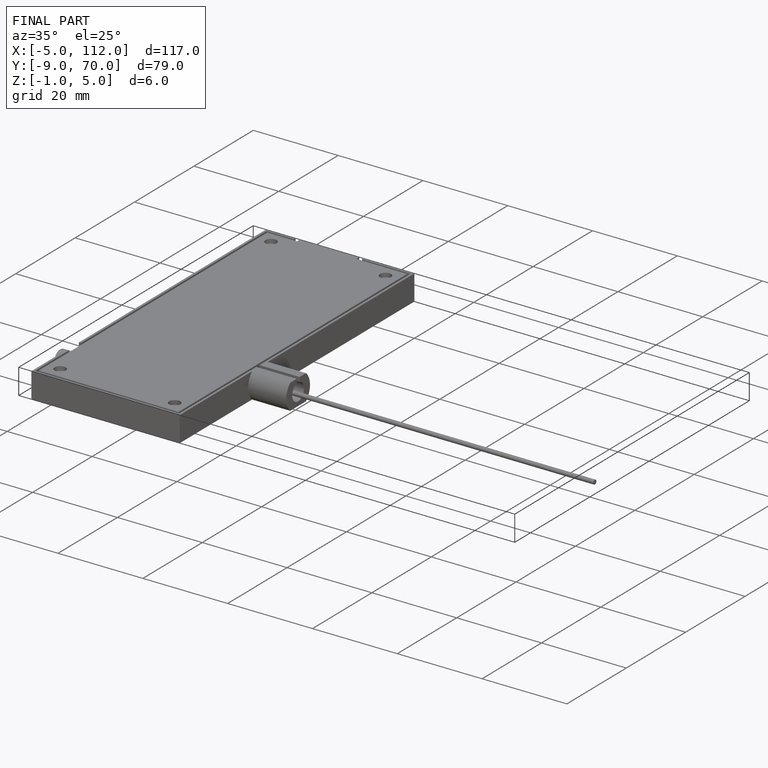
[diagram: finished part — iso view with bounding-box wireframe]
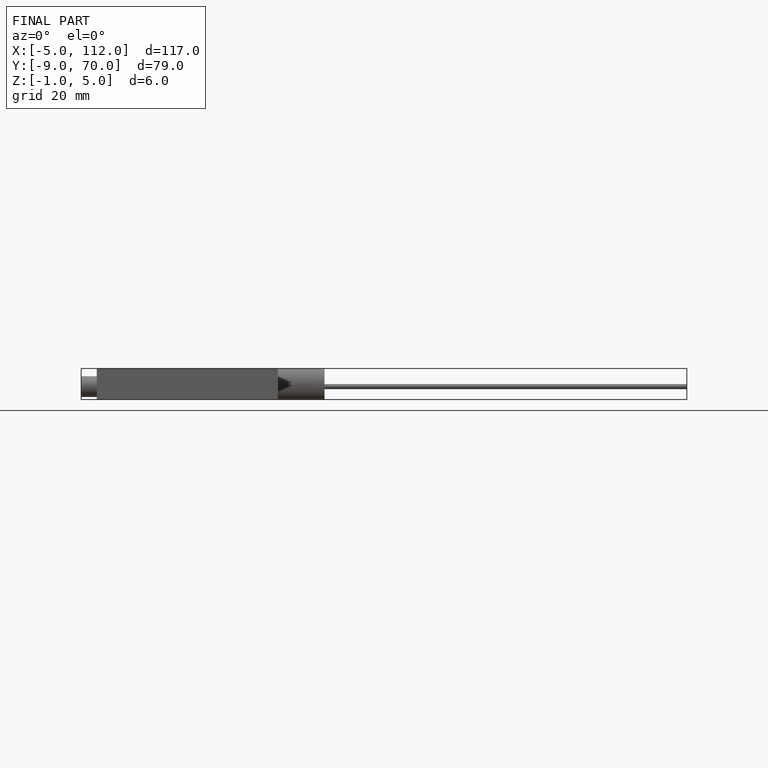
[diagram: finished part — front view with bounding-box wireframe]
